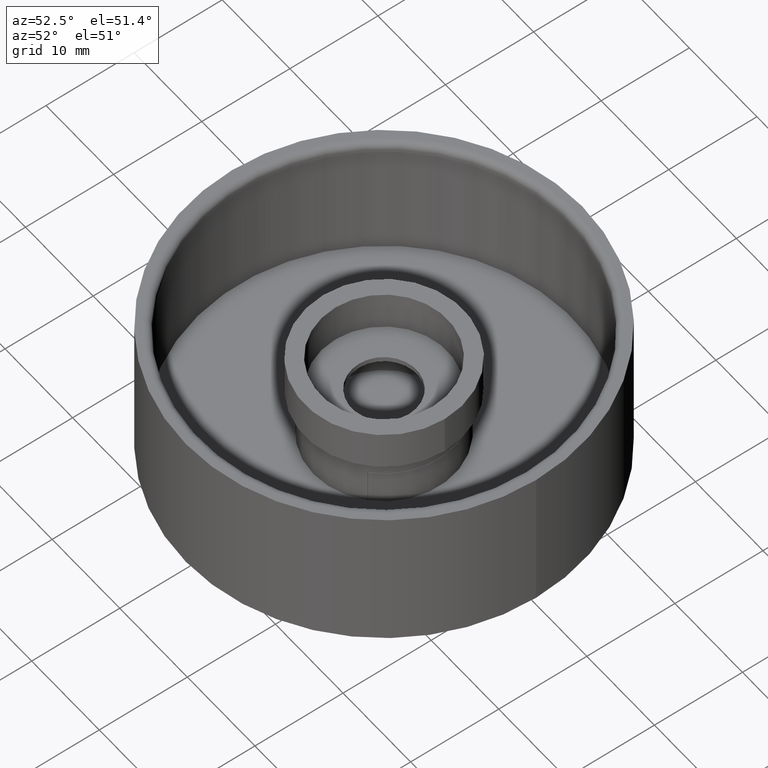
[diagram: clean part render]
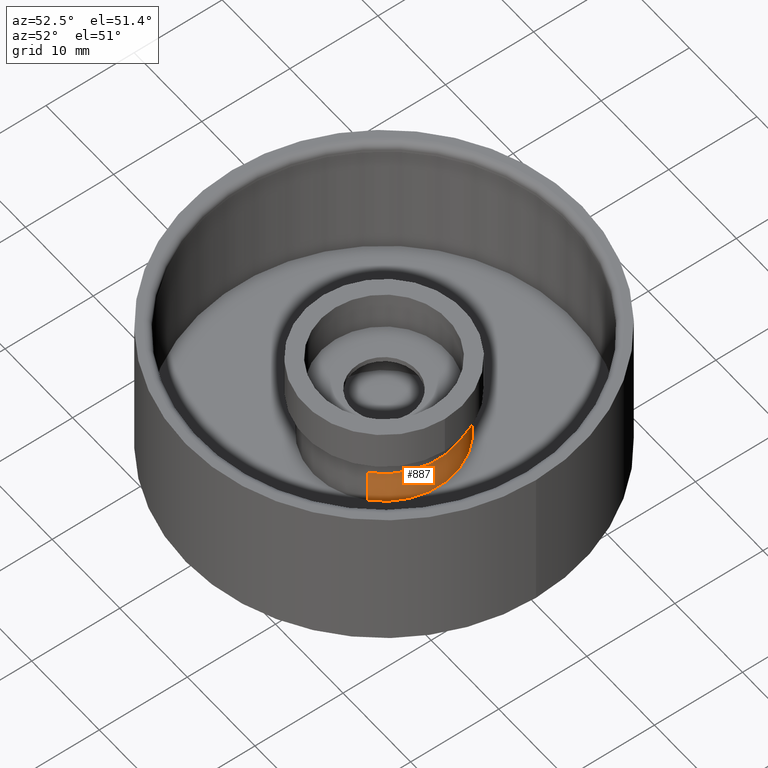
[diagram: same view with one face highlighted and labeled with its STEP entity id]
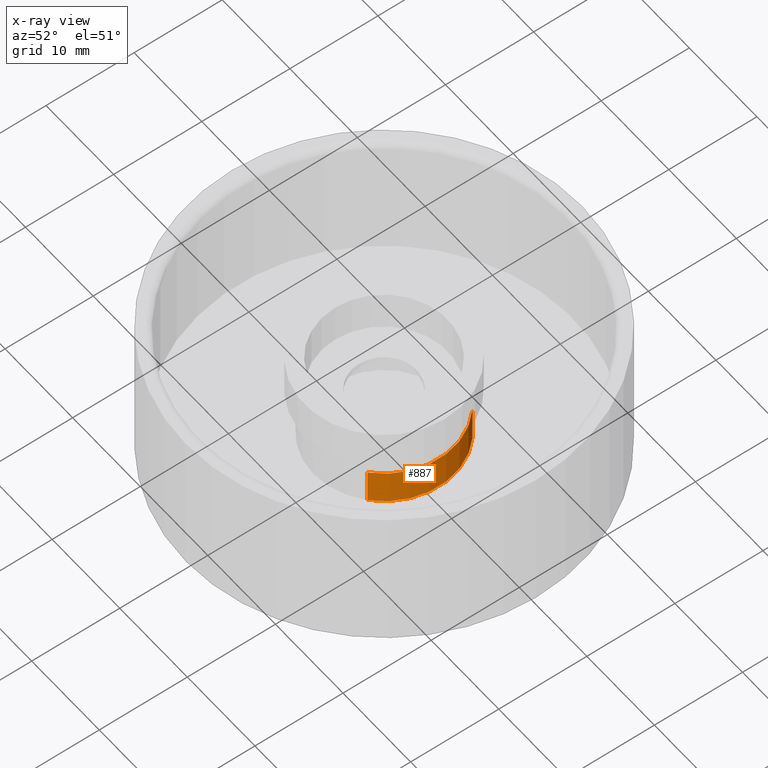
[diagram: x-ray of the same camera — body ghosted, the highlighted face saturated]
A machine part, auxiliary view. The second image highlights one B-rep face of the part: STEP entity #887.
The next image is the same camera in x-ray: the body ghosted, the highlighted face saturated — about 0% of this face is hidden behind the body in this view.
In plain terms, the highlighted cylindrical surface (partial cylindrical patch) has radius 8 mm, axis along (0, 0, -1).
Its self-contained STEP definition (entity closure, byte-faithful):
#38 = VERTEX_POINT ( 'NONE', #140 ) ;
#67 = ORIENTED_EDGE ( 'NONE', *, *, #177, .T. ) ;
#104 = CIRCLE ( 'NONE', #633, 0.3149606299212598381 ) ;
#120 = ORIENTED_EDGE ( 'NONE', *, *, #469, .F. ) ;
#133 = CIRCLE ( 'NONE', #937, 0.3149606299212598381 ) ;
#140 = CARTESIAN_POINT ( 'NONE',  ( 0.2099737532808400031, 0.2347577929133637387, 0.06250000000000001388 ) ) ;
#159 = CARTESIAN_POINT ( 'NONE',  ( 0.2099737532808400031, -0.2347577929133637387, 0.06250000000000001388 ) ) ;
#177 = EDGE_CURVE ( 'NONE', #927, #38, #104, .T. ) ;
#225 = ORIENTED_EDGE ( 'NONE', *, *, #676, .F. ) ;
#268 = DIRECTION ( 'NONE',  ( 1.000000000000000000, 0.000000000000000000, 0.000000000000000000 ) ) ;
#303 = DIRECTION ( 'NONE',  ( 1.000000000000000000, 0.000000000000000000, 0.000000000000000000 ) ) ;
#307 = VECTOR ( 'NONE', #761, 39.37007874015748143 ) ;
#393 = CARTESIAN_POINT ( 'NONE',  ( 0.2099737532808399754, -0.2347577929133637387, 0.2187500000000000278 ) ) ;
#410 = LINE ( 'NONE', #845, #307 ) ;
#412 = VERTEX_POINT ( 'NONE', #481 ) ;
#413 = VECTOR ( 'NONE', #918, 39.37007874015748143 ) ;
#435 = EDGE_CURVE ( 'NONE', #412, #558, #133, .T. ) ;
#455 = DIRECTION ( 'NONE',  ( 0.000000000000000000, 0.000000000000000000, -1.000000000000000000 ) ) ;
#469 = EDGE_CURVE ( 'NONE', #412, #38, #410, .T. ) ;
#477 = LINE ( 'NONE', #844, #413 ) ;
#481 = CARTESIAN_POINT ( 'NONE',  ( 0.2099737532808399754, 0.2347577929133637387, 0.2187500000000000278 ) ) ;
#488 = ORIENTED_EDGE ( 'NONE', *, *, #435, .T. ) ;
#489 = AXIS2_PLACEMENT_3D ( 'NONE', #532, #455, #668 ) ;
#491 = CARTESIAN_POINT ( 'NONE',  ( 0.000000000000000000, 0.000000000000000000, 0.2187500000000000278 ) ) ;
#532 = CARTESIAN_POINT ( 'NONE',  ( 0.000000000000000000, 0.000000000000000000, 0.3065944881889763884 ) ) ;
#558 = VERTEX_POINT ( 'NONE', #393 ) ;
#606 = EDGE_LOOP ( 'NONE', ( #67, #120, #488, #225 ) ) ;
#633 = AXIS2_PLACEMENT_3D ( 'NONE', #735, #738, #303 ) ;
#639 = CYLINDRICAL_SURFACE ( 'NONE', #489, 0.3149606299212598381 ) ;
#668 = DIRECTION ( 'NONE',  ( -1.000000000000000000, 0.000000000000000000, 0.000000000000000000 ) ) ;
#676 = EDGE_CURVE ( 'NONE', #927, #558, #477, .T. ) ;
#686 = DIRECTION ( 'NONE',  ( -0.000000000000000000, -0.000000000000000000, -1.000000000000000000 ) ) ;
#735 = CARTESIAN_POINT ( 'NONE',  ( 0.000000000000000000, 0.000000000000000000, 0.06250000000000001388 ) ) ;
#738 = DIRECTION ( 'NONE',  ( 0.000000000000000000, 0.000000000000000000, 1.000000000000000000 ) ) ;
#761 = DIRECTION ( 'NONE',  ( 0.000000000000000000, 0.000000000000000000, -1.000000000000000000 ) ) ;
#814 = FACE_OUTER_BOUND ( 'NONE', #606, .T. ) ;
#844 = CARTESIAN_POINT ( 'NONE',  ( 0.2099737532808398921, -0.2347577929133636276, 0.3065944881889763884 ) ) ;
#845 = CARTESIAN_POINT ( 'NONE',  ( 0.2099737532808398921, 0.2347577929133636276, 0.3065944881889763884 ) ) ;
#887 = ADVANCED_FACE ( 'NONE', ( #814 ), #639, .T. ) ;
#918 = DIRECTION ( 'NONE',  ( -0.000000000000000000, -0.000000000000000000, 1.000000000000000000 ) ) ;
#927 = VERTEX_POINT ( 'NONE', #159 ) ;
#937 = AXIS2_PLACEMENT_3D ( 'NONE', #491, #686, #268 ) ;